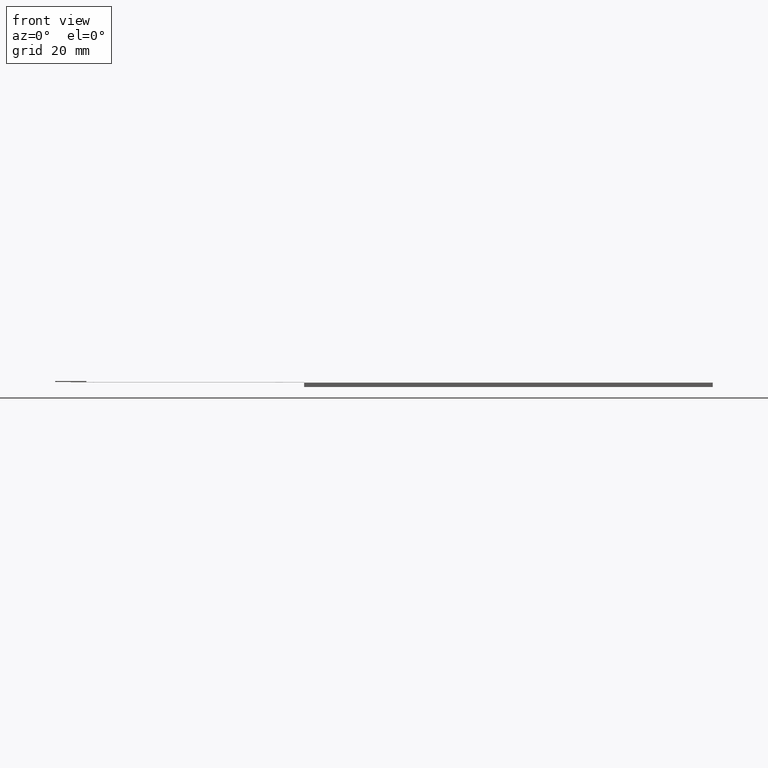
[diagram: clean part render]
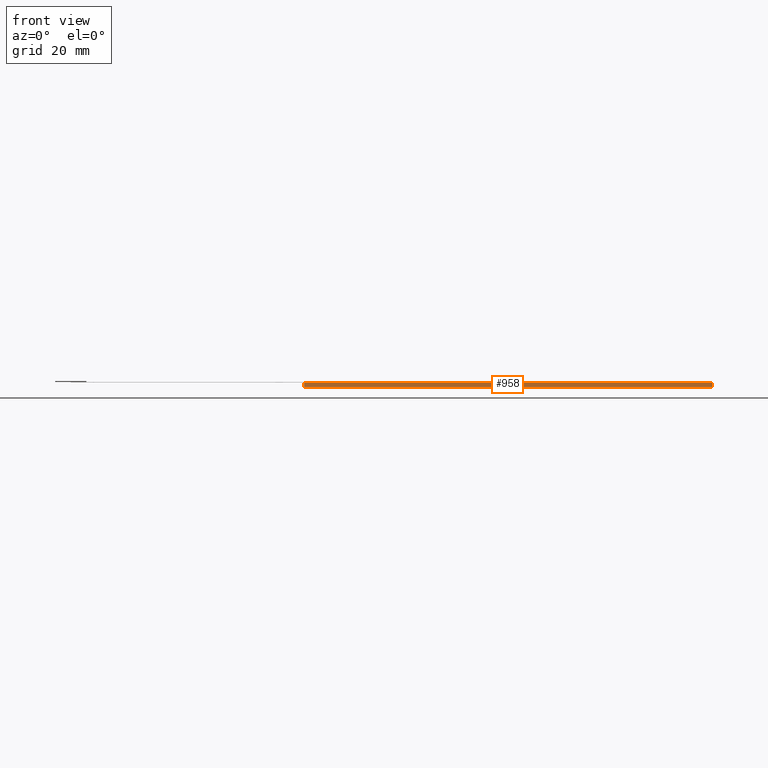
[diagram: same view with one face highlighted and labeled with its STEP entity id]
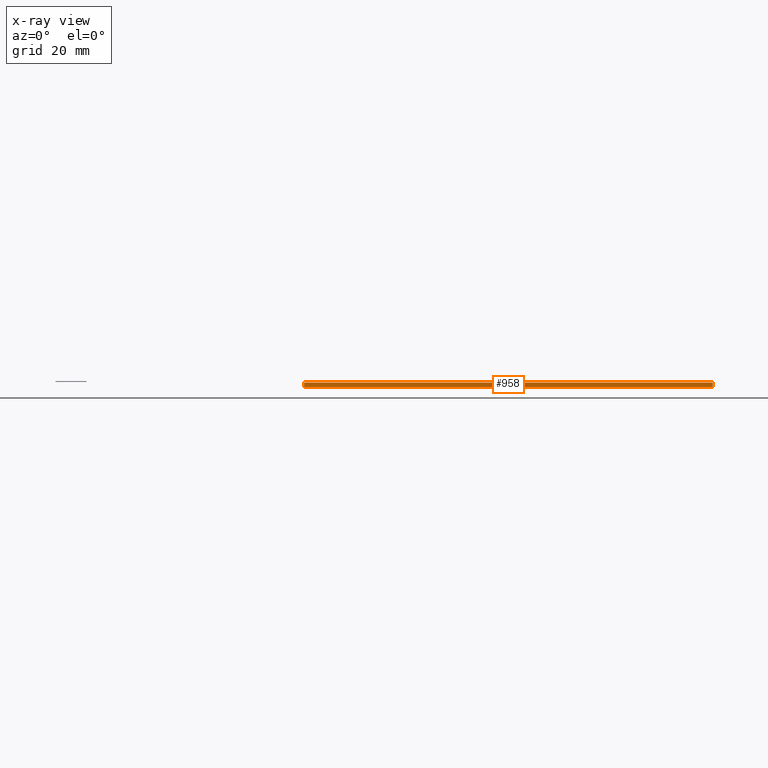
[diagram: x-ray of the same camera — body ghosted, the highlighted face saturated]
A machine part, front view. The second image highlights one B-rep face of the part: STEP entity #958.
The next image is the same camera in x-ray: the body ghosted, the highlighted face saturated — about 0% of this face is hidden behind the body in this view.
In plain terms, the highlighted planar face has unit normal (0, -1, 0).
Its self-contained STEP definition (entity closure, byte-faithful):
#48=FACE_OUTER_BOUND('',#102,.T.);
#102=EDGE_LOOP('',(#677,#678,#679,#680));
#169=LINE('',#1397,#295);
#173=LINE('',#1404,#299);
#174=LINE('',#1407,#300);
#175=LINE('',#1408,#301);
#295=VECTOR('',#1132,10.);
#299=VECTOR('',#1138,10.);
#300=VECTOR('',#1141,10.);
#301=VECTOR('',#1142,10.);
#413=VERTEX_POINT('',#1394);
#414=VERTEX_POINT('',#1396);
#416=VERTEX_POINT('',#1402);
#417=VERTEX_POINT('',#1406);
#513=EDGE_CURVE('',#413,#414,#169,.T.);
#517=EDGE_CURVE('',#413,#416,#173,.T.);
#518=EDGE_CURVE('',#417,#416,#174,.T.);
#519=EDGE_CURVE('',#414,#417,#175,.T.);
#677=ORIENTED_EDGE('',*,*,#513,.F.);
#678=ORIENTED_EDGE('',*,*,#517,.T.);
#679=ORIENTED_EDGE('',*,*,#518,.F.);
#680=ORIENTED_EDGE('',*,*,#519,.F.);
#912=PLANE('',#1031);
#958=ADVANCED_FACE('',(#48),#912,.T.);
#1031=AXIS2_PLACEMENT_3D('',#1405,#1139,#1140);
#1132=DIRECTION('',(1.,6.75934870395833E-17,0.));
#1138=DIRECTION('',(0.,0.,-1.));
#1139=DIRECTION('center_axis',(6.75934870395833E-17,-1.,0.));
#1140=DIRECTION('ref_axis',(-1.,-6.75934870395833E-17,0.));
#1141=DIRECTION('',(-1.,-6.75934870395833E-17,0.));
#1142=DIRECTION('',(0.,0.,-1.));
#1394=CARTESIAN_POINT('',(-67.7,-51.5,0.));
#1396=CARTESIAN_POINT('',(63.7,-51.5,0.));
#1397=CARTESIAN_POINT('',(-67.7,-51.5,0.));
#1402=CARTESIAN_POINT('',(-67.7,-51.5,-1.4));
#1404=CARTESIAN_POINT('',(-67.7,-51.5,0.));
#1405=CARTESIAN_POINT('Origin',(63.7,-51.5,0.));
#1406=CARTESIAN_POINT('',(63.7,-51.5,-1.4));
#1407=CARTESIAN_POINT('',(-67.7,-51.5,-1.4));
#1408=CARTESIAN_POINT('',(63.7,-51.5,0.));